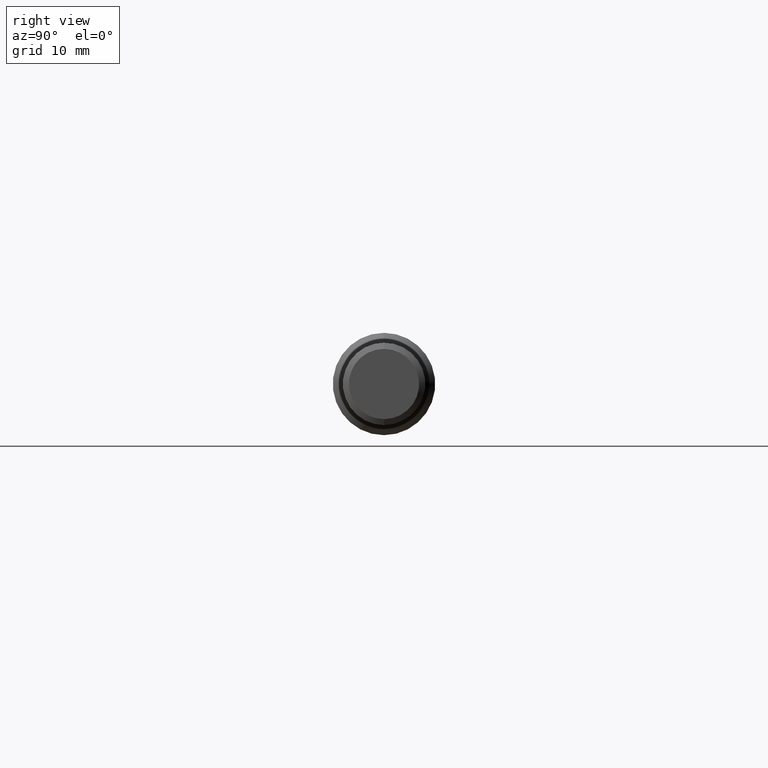
[diagram: clean part render]
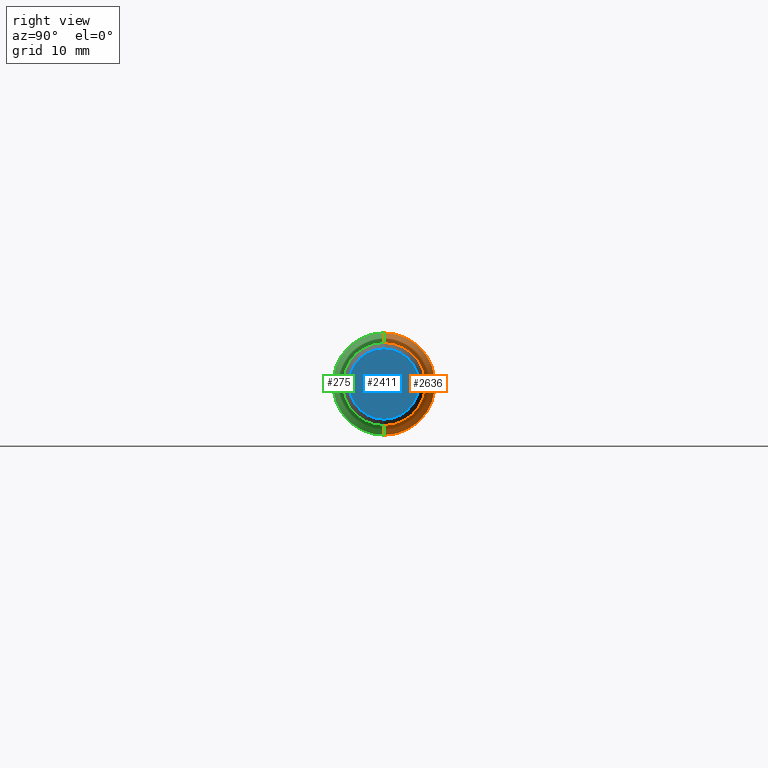
[diagram: same view with three faces highlighted in distinct colors, each labeled with its STEP entity id]
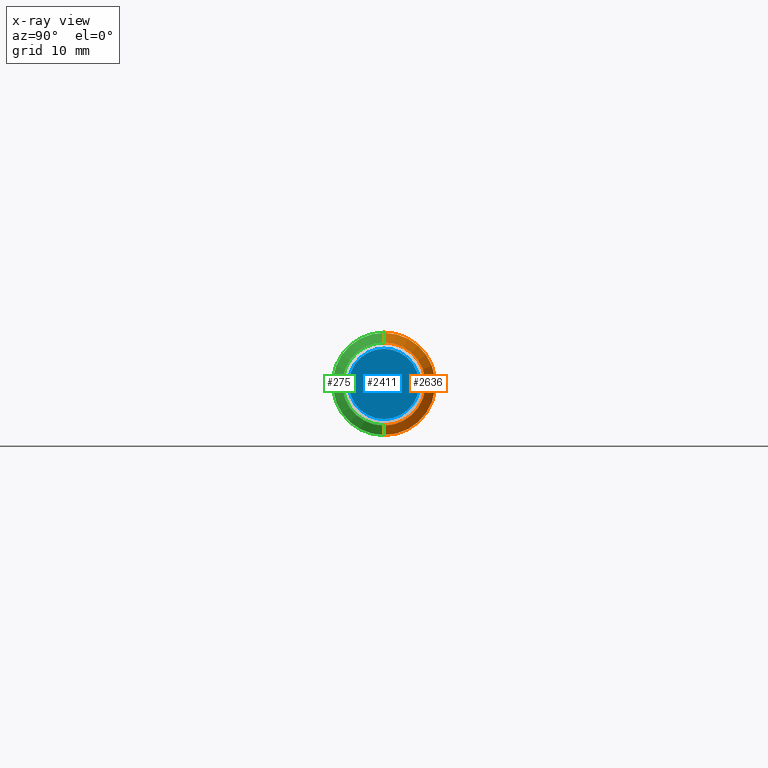
[diagram: x-ray of the same camera — body ghosted, the three highlighted faces saturated]
A machine part, right view with three faces highlighted in distinct colors.
The next image is the same camera in x-ray (body ghosted, the three faces saturated) — at least one of them is partly hidden behind the body in this view.
Their STEP definitions:

[orange] entity #2636 — the highlighted conical surface has half-angle 45 deg.
#8 = DIRECTION ( 'NONE',  ( -1.000000000000000000, -0.000000000000000000, -0.000000000000000000 ) ) ;
#153 = CARTESIAN_POINT ( 'NONE',  ( 2.328149999999999942, 3.059780027669661931E-17, -0.2498499999999999888 ) ) ;
#232 = VERTEX_POINT ( 'NONE', #2659 ) ;
#500 = CIRCLE ( 'NONE', #4637, 0.2030000000000000138 ) ;
#531 = ORIENTED_EDGE ( 'NONE', *, *, #4129, .T. ) ;
#720 = ORIENTED_EDGE ( 'NONE', *, *, #1413, .T. ) ;
#853 = CARTESIAN_POINT ( 'NONE',  ( 2.328149999999999942, 0.000000000000000000, 0.000000000000000000 ) ) ;
#935 = EDGE_CURVE ( 'NONE', #3493, #232, #2117, .T. ) ;
#1036 = CARTESIAN_POINT ( 'NONE',  ( 2.374999999999999556, 0.000000000000000000, 0.000000000000000000 ) ) ;
#1040 = VECTOR ( 'NONE', #2893, 39.37007874015748143 ) ;
#1413 = EDGE_CURVE ( 'NONE', #3493, #2631, #500, .T. ) ;
#1865 = FACE_OUTER_BOUND ( 'NONE', #3487, .T. ) ;
#1950 = DIRECTION ( 'NONE',  ( -1.000000000000000000, -0.000000000000000000, -0.000000000000000000 ) ) ;
#2117 = LINE ( 'NONE', #3601, #3530 ) ;
#2230 = DIRECTION ( 'NONE',  ( 0.000000000000000000, 0.000000000000000000, 1.000000000000000000 ) ) ;
#2294 = CIRCLE ( 'NONE', #3536, 0.2498499999999999888 ) ;
#2342 = VERTEX_POINT ( 'NONE', #153 ) ;
#2402 = EDGE_CURVE ( 'NONE', #232, #2342, #2294, .T. ) ;
#2631 = VERTEX_POINT ( 'NONE', #3694 ) ;
#2636 = ADVANCED_FACE ( 'NONE', ( #1865 ), #3818, .T. ) ;
#2659 = CARTESIAN_POINT ( 'NONE',  ( 2.328149999999999942, 0.000000000000000000, 0.2498499999999999888 ) ) ;
#2893 = DIRECTION ( 'NONE',  ( -0.7071067811865462405, 8.659560562354948882E-17, -0.7071067811865487940 ) ) ;
#2968 = CARTESIAN_POINT ( 'NONE',  ( 2.374999999999999556, 0.000000000000000000, 0.2030000000000000138 ) ) ;
#3329 = DIRECTION ( 'NONE',  ( 0.000000000000000000, 0.000000000000000000, 1.000000000000000000 ) ) ;
#3430 = DIRECTION ( 'NONE',  ( -1.000000000000000000, -0.000000000000000000, -0.000000000000000000 ) ) ;
#3487 = EDGE_LOOP ( 'NONE', ( #720, #531, #3930, #3528 ) ) ;
#3493 = VERTEX_POINT ( 'NONE', #2968 ) ;
#3528 = ORIENTED_EDGE ( 'NONE', *, *, #935, .F. ) ;
#3530 = VECTOR ( 'NONE', #4741, 39.37007874015748143 ) ;
#3536 = AXIS2_PLACEMENT_3D ( 'NONE', #853, #3430, #4593 ) ;
#3577 = AXIS2_PLACEMENT_3D ( 'NONE', #4464, #8, #3329 ) ;
#3601 = CARTESIAN_POINT ( 'NONE',  ( 2.374999999999999556, 0.000000000000000000, 0.2030000000000000138 ) ) ;
#3693 = CARTESIAN_POINT ( 'NONE',  ( 2.374999999999999556, 2.486033002269127361E-17, -0.2030000000000000138 ) ) ;
#3694 = CARTESIAN_POINT ( 'NONE',  ( 2.374999999999999556, 2.772906514969394800E-17, -0.2030000000000000138 ) ) ;
#3818 = CONICAL_SURFACE ( 'NONE', #3577, 0.2030000000000000138, 0.7853981633974501664 ) ;
#3930 = ORIENTED_EDGE ( 'NONE', *, *, #2402, .F. ) ;
#4129 = EDGE_CURVE ( 'NONE', #2631, #2342, #4417, .T. ) ;
#4417 = LINE ( 'NONE', #3693, #1040 ) ;
#4464 = CARTESIAN_POINT ( 'NONE',  ( 2.374999999999999556, 0.000000000000000000, 0.000000000000000000 ) ) ;
#4593 = DIRECTION ( 'NONE',  ( 0.000000000000000000, 0.000000000000000000, 1.000000000000000000 ) ) ;
#4637 = AXIS2_PLACEMENT_3D ( 'NONE', #1036, #1950, #2230 ) ;
#4741 = DIRECTION ( 'NONE',  ( -0.7071067811865462405, 0.000000000000000000, 0.7071067811865487940 ) ) ;

[blue] entity #2411 — the highlighted planar face has unit normal (-1, 0, -0).
#177 = ORIENTED_EDGE ( 'NONE', *, *, #651, .F. ) ;
#215 = VERTEX_POINT ( 'NONE', #329 ) ;
#329 = CARTESIAN_POINT ( 'NONE',  ( 3.500000000000000000, 2.099764770262778336E-17, -0.1714588052428435982 ) ) ;
#556 = DIRECTION ( 'NONE',  ( 0.000000000000000000, 0.000000000000000000, 1.000000000000000000 ) ) ;
#651 = EDGE_CURVE ( 'NONE', #4439, #215, #3145, .T. ) ;
#1185 = AXIS2_PLACEMENT_3D ( 'NONE', #2746, #1669, #4229 ) ;
#1254 = EDGE_CURVE ( 'NONE', #215, #4439, #3315, .T. ) ;
#1393 = CARTESIAN_POINT ( 'NONE',  ( 3.500000000000000000, 0.000000000000000000, 0.000000000000000000 ) ) ;
#1501 = DIRECTION ( 'NONE',  ( 0.000000000000000000, 0.000000000000000000, 1.000000000000000000 ) ) ;
#1617 = PLANE ( 'NONE',  #1185 ) ;
#1669 = DIRECTION ( 'NONE',  ( -1.000000000000000000, 0.000000000000000000, -0.000000000000000000 ) ) ;
#2411 = ADVANCED_FACE ( 'NONE', ( #4541 ), #1617, .F. ) ;
#2540 = AXIS2_PLACEMENT_3D ( 'NONE', #1393, #3960, #556 ) ;
#2654 = DIRECTION ( 'NONE',  ( -1.000000000000000000, -0.000000000000000000, -0.000000000000000000 ) ) ;
#2746 = CARTESIAN_POINT ( 'NONE',  ( 3.500000000000000000, 0.2030000000000000138, 0.000000000000000000 ) ) ;
#3145 = CIRCLE ( 'NONE', #3605, 0.1714588052428435982 ) ;
#3315 = CIRCLE ( 'NONE', #2540, 0.1714588052428435982 ) ;
#3459 = ORIENTED_EDGE ( 'NONE', *, *, #1254, .F. ) ;
#3605 = AXIS2_PLACEMENT_3D ( 'NONE', #4452, #2654, #1501 ) ;
#3787 = EDGE_LOOP ( 'NONE', ( #177, #3459 ) ) ;
#3960 = DIRECTION ( 'NONE',  ( -1.000000000000000000, -0.000000000000000000, -0.000000000000000000 ) ) ;
#4229 = DIRECTION ( 'NONE',  ( -0.000000000000000000, 0.000000000000000000, 1.000000000000000000 ) ) ;
#4247 = CARTESIAN_POINT ( 'NONE',  ( 3.500000000000000000, 0.000000000000000000, 0.1714588052428435982 ) ) ;
#4439 = VERTEX_POINT ( 'NONE', #4247 ) ;
#4452 = CARTESIAN_POINT ( 'NONE',  ( 3.500000000000000000, 0.000000000000000000, 0.000000000000000000 ) ) ;
#4541 = FACE_OUTER_BOUND ( 'NONE', #3787, .T. ) ;

[green] entity #275 — the highlighted conical surface has half-angle 45 deg.
#153 = CARTESIAN_POINT ( 'NONE',  ( 2.328149999999999942, 3.059780027669661931E-17, -0.2498499999999999888 ) ) ;
#184 = CARTESIAN_POINT ( 'NONE',  ( 2.374999999999999556, 0.000000000000000000, 0.000000000000000000 ) ) ;
#232 = VERTEX_POINT ( 'NONE', #2659 ) ;
#242 = DIRECTION ( 'NONE',  ( -1.000000000000000000, -0.000000000000000000, -0.000000000000000000 ) ) ;
#275 = ADVANCED_FACE ( 'NONE', ( #2393 ), #2882, .T. ) ;
#506 = ORIENTED_EDGE ( 'NONE', *, *, #1982, .T. ) ;
#905 = DIRECTION ( 'NONE',  ( 0.000000000000000000, 0.000000000000000000, 1.000000000000000000 ) ) ;
#930 = CARTESIAN_POINT ( 'NONE',  ( 2.374999999999999556, 0.000000000000000000, 0.000000000000000000 ) ) ;
#935 = EDGE_CURVE ( 'NONE', #3493, #232, #2117, .T. ) ;
#1040 = VECTOR ( 'NONE', #2893, 39.37007874015748143 ) ;
#1601 = AXIS2_PLACEMENT_3D ( 'NONE', #3597, #242, #2579 ) ;
#1651 = DIRECTION ( 'NONE',  ( -1.000000000000000000, -0.000000000000000000, -0.000000000000000000 ) ) ;
#1982 = EDGE_CURVE ( 'NONE', #2631, #3493, #4672, .T. ) ;
#2117 = LINE ( 'NONE', #3601, #3530 ) ;
#2165 = EDGE_LOOP ( 'NONE', ( #4263, #506, #4648, #4699 ) ) ;
#2342 = VERTEX_POINT ( 'NONE', #153 ) ;
#2393 = FACE_OUTER_BOUND ( 'NONE', #2165, .T. ) ;
#2579 = DIRECTION ( 'NONE',  ( 0.000000000000000000, 0.000000000000000000, 1.000000000000000000 ) ) ;
#2631 = VERTEX_POINT ( 'NONE', #3694 ) ;
#2659 = CARTESIAN_POINT ( 'NONE',  ( 2.328149999999999942, 0.000000000000000000, 0.2498499999999999888 ) ) ;
#2882 = CONICAL_SURFACE ( 'NONE', #3426, 0.2030000000000000138, 0.7853981633974501664 ) ;
#2893 = DIRECTION ( 'NONE',  ( -0.7071067811865462405, 8.659560562354948882E-17, -0.7071067811865487940 ) ) ;
#2968 = CARTESIAN_POINT ( 'NONE',  ( 2.374999999999999556, 0.000000000000000000, 0.2030000000000000138 ) ) ;
#3426 = AXIS2_PLACEMENT_3D ( 'NONE', #184, #1651, #4650 ) ;
#3482 = DIRECTION ( 'NONE',  ( -1.000000000000000000, -0.000000000000000000, -0.000000000000000000 ) ) ;
#3493 = VERTEX_POINT ( 'NONE', #2968 ) ;
#3530 = VECTOR ( 'NONE', #4741, 39.37007874015748143 ) ;
#3597 = CARTESIAN_POINT ( 'NONE',  ( 2.328149999999999942, 0.000000000000000000, 0.000000000000000000 ) ) ;
#3601 = CARTESIAN_POINT ( 'NONE',  ( 2.374999999999999556, 0.000000000000000000, 0.2030000000000000138 ) ) ;
#3693 = CARTESIAN_POINT ( 'NONE',  ( 2.374999999999999556, 2.486033002269127361E-17, -0.2030000000000000138 ) ) ;
#3694 = CARTESIAN_POINT ( 'NONE',  ( 2.374999999999999556, 2.772906514969394800E-17, -0.2030000000000000138 ) ) ;
#3972 = AXIS2_PLACEMENT_3D ( 'NONE', #930, #3482, #905 ) ;
#4100 = EDGE_CURVE ( 'NONE', #2342, #232, #4258, .T. ) ;
#4129 = EDGE_CURVE ( 'NONE', #2631, #2342, #4417, .T. ) ;
#4258 = CIRCLE ( 'NONE', #1601, 0.2498499999999999888 ) ;
#4263 = ORIENTED_EDGE ( 'NONE', *, *, #4129, .F. ) ;
#4417 = LINE ( 'NONE', #3693, #1040 ) ;
#4648 = ORIENTED_EDGE ( 'NONE', *, *, #935, .T. ) ;
#4650 = DIRECTION ( 'NONE',  ( 0.000000000000000000, 0.000000000000000000, 1.000000000000000000 ) ) ;
#4672 = CIRCLE ( 'NONE', #3972, 0.2030000000000000138 ) ;
#4699 = ORIENTED_EDGE ( 'NONE', *, *, #4100, .F. ) ;
#4741 = DIRECTION ( 'NONE',  ( -0.7071067811865462405, 0.000000000000000000, 0.7071067811865487940 ) ) ;